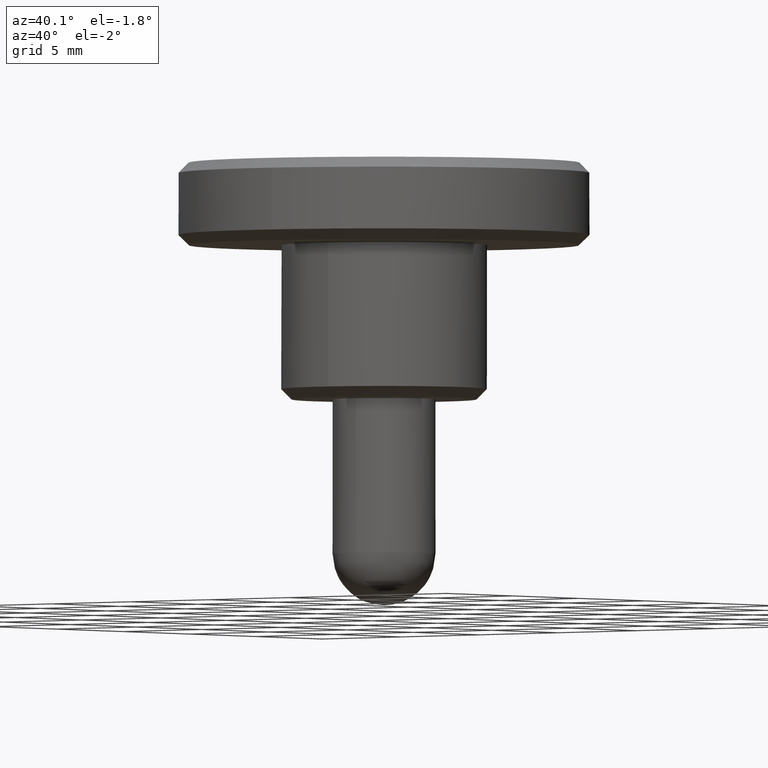
[diagram: clean part render]
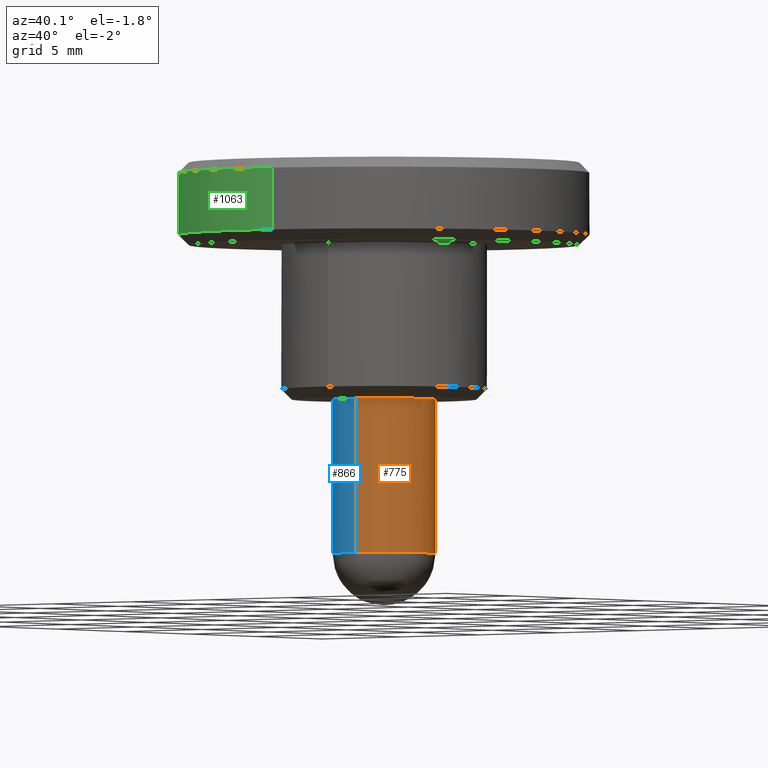
[diagram: same view with three faces highlighted in distinct colors, each labeled with its STEP entity id]
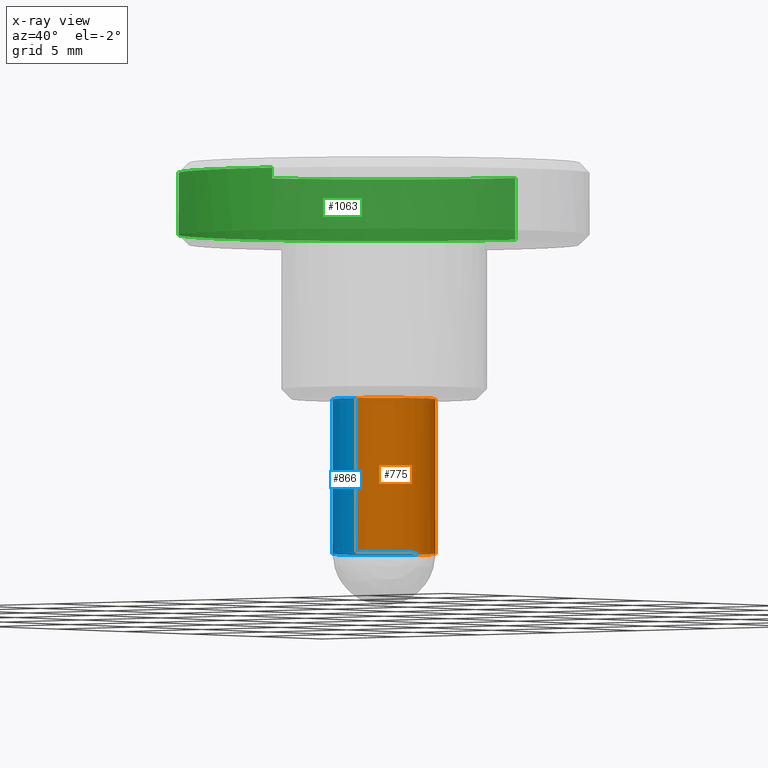
[diagram: x-ray of the same camera — body ghosted, the three highlighted faces saturated]
A machine part, auxiliary view with three faces highlighted in distinct colors.
The next image is the same camera in x-ray (body ghosted, the three faces saturated) — at least one of them is partly hidden behind the body in this view.
Their STEP definitions:

[orange] entity #775 — the highlighted face is a freeform B-spline surface patch.
#677=CARTESIAN_POINT('',(0.310320005199573,-2.480665534563847,-7.687500000000002));
#678=CARTESIAN_POINT('',(2.519332076256112,-2.204328145333053,-7.687500000000004));
#679=CARTESIAN_POINT('',(2.499904807660427,0.021816338745935,-7.687500000000001));
#680=CARTESIAN_POINT('',(2.478088468914493,2.521721146406362,-7.687500000000001));
#681=CARTESIAN_POINT('',(-0.021816338745935,2.499904807660427,-7.687500000000001));
#682=CARTESIAN_POINT('',(0.310320005199573,-2.480665534563847,0.192187500000000));
#683=CARTESIAN_POINT('',(2.519332076256112,-2.204328145333053,0.192187500000000));
#684=CARTESIAN_POINT('',(2.499904807660427,0.021816338745935,0.192187500000000));
#685=CARTESIAN_POINT('',(2.478088468914493,2.521721146406362,0.192187500000000));
#686=CARTESIAN_POINT('',(-0.021816338745935,2.499904807660427,0.192187500000000));
#694=(BOUNDED_SURFACE()B_SPLINE_SURFACE(2,1,((#677,#682),(#678,#683),(#679,#684),(#680,#685),(#681,#686)),.UNSPECIFIED.,.F.,.F.,.U.)B_SPLINE_SURFACE_WITH_KNOTS((3,2,3),(2,2),(0.0,3.810764773832473,7.952900397563423),(0.0,7.879687500000001),.UNSPECIFIED.)GEOMETRIC_REPRESENTATION_ITEM()RATIONAL_B_SPLINE_SURFACE(((0.956886118190660,0.956886118190660),(0.730538238691624,0.730538238691624),(1.0,1.0),(0.707106781186548,0.707106781186548),(1.0,1.0)))REPRESENTATION_ITEM('')SURFACE());
#695=CARTESIAN_POINT('',(0.310320005214538,-2.480665534561975,-7.500000000000000));
#696=VERTEX_POINT('',#695);
#697=CARTESIAN_POINT('',(2.500000000000000,0.0,-7.500000000000000));
#698=VERTEX_POINT('',#697);
#699=CARTESIAN_POINT('',(0.310320005214538,-2.480665534561975,-7.500000000000000));
#700=CARTESIAN_POINT('',(2.500000000000001,-2.206746500348739,-7.500000000000000));
#701=CARTESIAN_POINT('',(2.500000000000000,0.0,-7.500000000000000));
#709=(BOUNDED_CURVE()B_SPLINE_CURVE(2,(#699,#700,#701),.UNSPECIFIED.,.F.,.U.)B_SPLINE_CURVE_WITH_KNOTS((3,3),(0.771473928972736,1.0),.UNSPECIFIED.)CURVE()GEOMETRIC_REPRESENTATION_ITEM()RATIONAL_B_SPLINE_CURVE((0.954005430270770,0.732265053896132,1.0))REPRESENTATION_ITEM(''));
#710=EDGE_CURVE('',#696,#698,#709,.T.);
#711=ORIENTED_EDGE('',*,*,#710,.T.);
#712=CARTESIAN_POINT('',(-0.021811797363553,2.499904847284221,-7.500000000000020));
#713=VERTEX_POINT('',#712);
#714=CARTESIAN_POINT('',(2.500000000000000,0.0,-7.500000000000000));
#715=CARTESIAN_POINT('',(2.500000000000000,2.500000000000000,-7.500000000000000));
#716=CARTESIAN_POINT('',(0.0,2.500000000000000,-7.500000000000000));
#717=CARTESIAN_POINT('',(-0.010906106230911,2.500000000000000,-7.500000000000000));
#718=CARTESIAN_POINT('',(-0.021811797363553,2.499904847284221,-7.500000000000020));
#726=(BOUNDED_CURVE()B_SPLINE_CURVE(2,(#714,#715,#716,#717,#718),.UNSPECIFIED.,.F.,.U.)B_SPLINE_CURVE_WITH_KNOTS((3,2,3),(0.0,0.250000000000000,0.251539574350004),.UNSPECIFIED.)CURVE()GEOMETRIC_REPRESENTATION_ITEM()RATIONAL_B_SPLINE_CURVE((1.0,0.707106781186548,1.0,0.998196276452099,0.996414768636269))REPRESENTATION_ITEM(''));
#727=EDGE_CURVE('',#698,#713,#726,.T.);
#728=ORIENTED_EDGE('',*,*,#727,.T.);
#729=CARTESIAN_POINT('',(-0.021812366237410,2.499904842321671,8.743006E-016));
#730=VERTEX_POINT('',#729);
#731=CARTESIAN_POINT('',(-0.021811797363553,2.499904847284221,-7.500000000000020));
#732=CARTESIAN_POINT('',(-0.021812366237410,2.499904842321671,8.743006E-016));
#733=QUASI_UNIFORM_CURVE('',1,(#731,#732),.UNSPECIFIED.,.F.,.U.);
#734=EDGE_CURVE('',#713,#730,#733,.T.);
#735=ORIENTED_EDGE('',*,*,#734,.T.);
#736=CARTESIAN_POINT('',(2.500000000000000,0.0,0.0));
#737=VERTEX_POINT('',#736);
#738=CARTESIAN_POINT('',(-0.021812366237410,2.499904842321671,8.743006E-016));
#739=CARTESIAN_POINT('',(-0.010906390684075,2.500000000000000,0.0));
#740=CARTESIAN_POINT('',(0.0,2.500000000000000,0.0));
#741=CARTESIAN_POINT('',(2.500000000000000,2.500000000000000,0.0));
#742=CARTESIAN_POINT('',(2.500000000000000,0.0,0.0));
#750=(BOUNDED_CURVE()B_SPLINE_CURVE(2,(#738,#739,#740,#741,#742),.UNSPECIFIED.,.F.,.U.)B_SPLINE_CURVE_WITH_KNOTS((3,2,3),(0.248460385567234,0.250000000000000,0.500000000000000),.UNSPECIFIED.)CURVE()GEOMETRIC_REPRESENTATION_ITEM()RATIONAL_B_SPLINE_CURVE((0.996414675873302,0.998196229492223,1.0,0.707106781186548,1.0))REPRESENTATION_ITEM(''));
#751=EDGE_CURVE('',#730,#737,#750,.T.);
#752=ORIENTED_EDGE('',*,*,#751,.T.);
#753=CARTESIAN_POINT('',(0.310320005215607,-2.480665534561841,-1.450307E-017));
#754=VERTEX_POINT('',#753);
#755=CARTESIAN_POINT('',(2.500000000000000,0.0,0.0));
#756=CARTESIAN_POINT('',(2.499999999999999,-2.206746500346836,0.0));
#757=CARTESIAN_POINT('',(0.310320005215607,-2.480665534561841,-1.450307E-017));
#765=(BOUNDED_CURVE()B_SPLINE_CURVE(2,(#755,#756,#757),.UNSPECIFIED.,.F.,.U.)B_SPLINE_CURVE_WITH_KNOTS((3,3),(0.500000000000000,0.728526071027120),.UNSPECIFIED.)CURVE()GEOMETRIC_REPRESENTATION_ITEM()RATIONAL_B_SPLINE_CURVE((1.0,0.732265053896301,0.954005430270490))REPRESENTATION_ITEM(''));
#766=EDGE_CURVE('',#737,#754,#765,.T.);
#767=ORIENTED_EDGE('',*,*,#766,.T.);
#768=CARTESIAN_POINT('',(0.310320005214538,-2.480665534561975,-7.500000000000000));
#769=CARTESIAN_POINT('',(0.310320005215607,-2.480665534561841,-1.450307E-017));
#770=QUASI_UNIFORM_CURVE('',1,(#768,#769),.UNSPECIFIED.,.F.,.U.);
#771=EDGE_CURVE('',#696,#754,#770,.T.);
#772=ORIENTED_EDGE('',*,*,#771,.F.);
#773=EDGE_LOOP('',(#711,#728,#735,#752,#767,#772));
#774=FACE_OUTER_BOUND('',#773,.T.);
#775=ADVANCED_FACE('',(#774),#694,.T.);

[blue] entity #866 — the highlighted face is a freeform B-spline surface patch.
#695=CARTESIAN_POINT('',(0.310320005214538,-2.480665534561975,-7.500000000000000));
#696=VERTEX_POINT('',#695);
#712=CARTESIAN_POINT('',(-0.021811797363553,2.499904847284221,-7.500000000000020));
#713=VERTEX_POINT('',#712);
#729=CARTESIAN_POINT('',(-0.021812366237410,2.499904842321671,8.743006E-016));
#730=VERTEX_POINT('',#729);
#731=CARTESIAN_POINT('',(-0.021811797363553,2.499904847284221,-7.500000000000020));
#732=CARTESIAN_POINT('',(-0.021812366237410,2.499904842321671,8.743006E-016));
#733=QUASI_UNIFORM_CURVE('',1,(#731,#732),.UNSPECIFIED.,.F.,.U.);
#734=EDGE_CURVE('',#713,#730,#733,.T.);
#753=CARTESIAN_POINT('',(0.310320005215607,-2.480665534561841,-1.450307E-017));
#754=VERTEX_POINT('',#753);
#768=CARTESIAN_POINT('',(0.310320005214538,-2.480665534561975,-7.500000000000000));
#769=CARTESIAN_POINT('',(0.310320005215607,-2.480665534561841,-1.450307E-017));
#770=QUASI_UNIFORM_CURVE('',1,(#768,#769),.UNSPECIFIED.,.F.,.U.);
#771=EDGE_CURVE('',#696,#754,#770,.T.);
#776=CARTESIAN_POINT('',(0.014733680180053,2.500223774843344,-7.687500000000001));
#777=CARTESIAN_POINT('',(-0.003485824154691,2.500064775637800,-7.687499999999996));
#778=CARTESIAN_POINT('',(-2.521721146406362,2.478088468914493,-7.687500000000001));
#779=CARTESIAN_POINT('',(-2.499904807660427,-0.021816338745935,-7.687500000000001));
#780=CARTESIAN_POINT('',(-2.478088468914493,-2.521721146406362,-7.687500000000001));
#781=CARTESIAN_POINT('',(0.021816338745935,-2.499904807660427,-7.687500000000001));
#782=CARTESIAN_POINT('',(0.166625397395434,-2.498641078150688,-7.687500000000003));
#783=CARTESIAN_POINT('',(0.329435670556374,-2.478274251543114,-7.687500000000002));
#784=CARTESIAN_POINT('',(0.348654116289641,-2.475870111163536,-7.687500000000002));
#785=CARTESIAN_POINT('',(0.014733680180053,2.500223774843344,0.192187500000000));
#786=CARTESIAN_POINT('',(-0.003485824154691,2.500064775637800,0.192187500000000));
#787=CARTESIAN_POINT('',(-2.521721146406362,2.478088468914493,0.192187500000000));
#788=CARTESIAN_POINT('',(-2.499904807660427,-0.021816338745935,0.192187500000000));
#789=CARTESIAN_POINT('',(-2.478088468914493,-2.521721146406362,0.192187500000000));
#790=CARTESIAN_POINT('',(0.021816338745935,-2.499904807660427,0.192187500000000));
#791=CARTESIAN_POINT('',(0.166625397395434,-2.498641078150688,0.192187500000000));
#792=CARTESIAN_POINT('',(0.329435670556374,-2.478274251543114,0.192187500000000));
#793=CARTESIAN_POINT('',(0.348654116289641,-2.475870111163536,0.192187500000000));
#801=(BOUNDED_SURFACE()B_SPLINE_SURFACE(2,1,((#776,#785),(#777,#786),(#778,#787),(#779,#788),(#780,#789),(#781,#790),(#782,#791),(#783,#792),(#784,#793)),.UNSPECIFIED.,.F.,.F.,.U.)B_SPLINE_SURFACE_WITH_KNOTS((3,1,2,2,1,3),(2,2),(0.0,0.043083556890763,4.185219180621712,8.327354804352661,8.658725654251137,8.701803890397091),(0.0,7.879687500000002),.UNSPECIFIED.)GEOMETRIC_REPRESENTATION_ITEM()RATIONAL_B_SPLINE_SURFACE(((1.006092935047019,1.006092935047019),(1.003046467523510,1.003046467523510),(0.707106781186548,0.707106781186548),(1.0,1.0),(0.707106781186548,0.707106781186548),(1.0,1.0),(0.976568542494924,0.976568542494924),(0.954327401507030,0.954327401507030),(0.951768684823399,0.951768684823399)))REPRESENTATION_ITEM('')SURFACE());
#802=CARTESIAN_POINT('',(-2.500000000000000,0.0,-7.500000000000000));
#803=VERTEX_POINT('',#802);
#804=CARTESIAN_POINT('',(-2.500000000000000,0.0,-7.500000000000000));
#805=CARTESIAN_POINT('',(-2.500000000000000,-2.500000000000000,-7.500000000000000));
#806=CARTESIAN_POINT('',(0.0,-2.500000000000000,-7.500000000000000));
#807=CARTESIAN_POINT('',(0.155762318848879,-2.500000000000000,-7.500000000000001));
#808=CARTESIAN_POINT('',(0.310320005214538,-2.480665534561974,-7.500000000000000));
#816=(BOUNDED_CURVE()B_SPLINE_CURVE(2,(#804,#805,#806,#807,#808),.UNSPECIFIED.,.F.,.U.)B_SPLINE_CURVE_WITH_KNOTS((3,2,3),(0.500000000000000,0.750000000000000,0.771473928972736),.UNSPECIFIED.)CURVE()GEOMETRIC_REPRESENTATION_ITEM()RATIONAL_B_SPLINE_CURVE((1.0,0.707106781186548,1.0,0.974841727290415,0.954005430270769))REPRESENTATION_ITEM(''));
#817=EDGE_CURVE('',#803,#696,#816,.T.);
#818=ORIENTED_EDGE('',*,*,#817,.T.);
#819=ORIENTED_EDGE('',*,*,#771,.T.);
#820=CARTESIAN_POINT('',(-2.500000000000000,0.0,0.0));
#821=VERTEX_POINT('',#820);
#822=CARTESIAN_POINT('',(0.310320005215607,-2.480665534561842,-1.450307E-017));
#823=CARTESIAN_POINT('',(0.155762318849957,-2.500000000000000,0.0));
#824=CARTESIAN_POINT('',(0.0,-2.500000000000000,0.0));
#825=CARTESIAN_POINT('',(-2.500000000000000,-2.500000000000000,0.0));
#826=CARTESIAN_POINT('',(-2.500000000000000,0.0,0.0));
#834=(BOUNDED_CURVE()B_SPLINE_CURVE(2,(#822,#823,#824,#825,#826),.UNSPECIFIED.,.F.,.U.)B_SPLINE_CURVE_WITH_KNOTS((3,2,3),(0.728526071027119,0.750000000000000,1.0),.UNSPECIFIED.)CURVE()GEOMETRIC_REPRESENTATION_ITEM()RATIONAL_B_SPLINE_CURVE((0.954005430270488,0.974841727290245,1.0,0.707106781186548,1.0))REPRESENTATION_ITEM(''));
#835=EDGE_CURVE('',#754,#821,#834,.T.);
#836=ORIENTED_EDGE('',*,*,#835,.T.);
#837=CARTESIAN_POINT('',(-2.500000000000000,0.0,0.0));
#838=CARTESIAN_POINT('',(-2.500000000000000,2.478281964782639,0.0));
#839=CARTESIAN_POINT('',(-0.021812366237410,2.499904842321671,8.743006E-016));
#847=(BOUNDED_CURVE()B_SPLINE_CURVE(2,(#837,#838,#839),.UNSPECIFIED.,.F.,.U.)B_SPLINE_CURVE_WITH_KNOTS((3,3),(0.0,0.248460385567234),.UNSPECIFIED.)CURVE()GEOMETRIC_REPRESENTATION_ITEM()RATIONAL_B_SPLINE_CURVE((1.0,0.708910551694325,0.996414675873302))REPRESENTATION_ITEM(''));
#848=EDGE_CURVE('',#821,#730,#847,.T.);
#849=ORIENTED_EDGE('',*,*,#848,.T.);
#850=ORIENTED_EDGE('',*,*,#734,.F.);
#851=CARTESIAN_POINT('',(-0.021811797363553,2.499904847284221,-7.500000000000020));
#852=CARTESIAN_POINT('',(-2.499999999999999,2.478282528757553,-7.499999999999999));
#853=CARTESIAN_POINT('',(-2.500000000000000,0.0,-7.500000000000000));
#861=(BOUNDED_CURVE()B_SPLINE_CURVE(2,(#851,#852,#853),.UNSPECIFIED.,.F.,.U.)B_SPLINE_CURVE_WITH_KNOTS((3,3),(0.251539574350004,0.500000000000000),.UNSPECIFIED.)CURVE()GEOMETRIC_REPRESENTATION_ITEM()RATIONAL_B_SPLINE_CURVE((0.996414768636269,0.708910504734449,1.0))REPRESENTATION_ITEM(''));
#862=EDGE_CURVE('',#713,#803,#861,.T.);
#863=ORIENTED_EDGE('',*,*,#862,.T.);
#864=EDGE_LOOP('',(#818,#819,#836,#849,#850,#863));
#865=FACE_OUTER_BOUND('',#864,.T.);
#866=ADVANCED_FACE('',(#865),#801,.T.);

[green] entity #1063 — the highlighted face is a freeform B-spline surface patch.
#70=CARTESIAN_POINT('',(-9.742181531784778,-2.256080451086446,10.999999999998970));
#71=VERTEX_POINT('',#70);
#72=CARTESIAN_POINT('',(-10.0,0.0,11.000000000000121));
#73=VERTEX_POINT('',#72);
#74=CARTESIAN_POINT('',(-9.742181531784778,-2.256080451086447,10.999999999998973));
#75=CARTESIAN_POINT('',(-10.000000000000002,-1.142771606807493,11.000000000000124));
#76=CARTESIAN_POINT('',(-10.0,0.0,11.000000000000121));
#84=(BOUNDED_CURVE()B_SPLINE_CURVE(2,(#74,#75,#76),.UNSPECIFIED.,.F.,.U.)B_SPLINE_CURVE_WITH_KNOTS((3,3),(0.961422971784283,1.0),.UNSPECIFIED.)CURVE()GEOMETRIC_REPRESENTATION_ITEM()RATIONAL_B_SPLINE_CURVE((0.923556557442257,0.954804200134566,1.0))REPRESENTATION_ITEM(''));
#85=EDGE_CURVE('',#71,#73,#84,.T.);
#143=CARTESIAN_POINT('',(-0.087265355013846,-9.999619230645545,10.999999999996030));
#144=VERTEX_POINT('',#143);
#150=CARTESIAN_POINT('',(1.241278290749142,-9.922662354676380,11.000000000000099));
#151=VERTEX_POINT('',#150);
#152=CARTESIAN_POINT('',(1.241278290749142,-9.922662354676380,11.000000000000099));
#153=CARTESIAN_POINT('',(0.623048400184220,-10.0,11.000000000000117));
#154=CARTESIAN_POINT('',(0.0,-10.0,11.000000000000121));
#155=CARTESIAN_POINT('',(-0.043633508237107,-10.0,11.000000000000119));
#156=CARTESIAN_POINT('',(-0.087265355013846,-9.999619230645545,10.999999999996028));
#164=(BOUNDED_CURVE()B_SPLINE_CURVE(2,(#152,#153,#154,#155,#156),.UNSPECIFIED.,.F.,.U.)B_SPLINE_CURVE_WITH_KNOTS((3,2,3),(0.728526100433277,0.750000000000000,0.751539894336047),.UNSPECIFIED.)CURVE()GEOMETRIC_REPRESENTATION_ITEM()RATIONAL_B_SPLINE_CURVE((0.954005487336481,0.974841761741703,1.0,0.998195901565130,0.996414028097953))REPRESENTATION_ITEM(''));
#165=EDGE_CURVE('',#151,#144,#164,.T.);
#182=CARTESIAN_POINT('',(-0.087258805515290,9.999619287793767,11.000000000000149));
#183=VERTEX_POINT('',#182);
#199=CARTESIAN_POINT('',(-10.0,0.0,11.000000000000121));
#200=CARTESIAN_POINT('',(-9.999999999999998,9.913118599007813,11.000000000000121));
#201=CARTESIAN_POINT('',(-0.087258805515290,9.999619287793767,11.000000000000151));
#209=(BOUNDED_CURVE()B_SPLINE_CURVE(2,(#199,#200,#201),.UNSPECIFIED.,.F.,.U.)B_SPLINE_CURVE_WITH_KNOTS((3,3),(0.0,0.248460221033578),.UNSPECIFIED.)CURVE()GEOMETRIC_REPRESENTATION_ITEM()RATIONAL_B_SPLINE_CURVE((1.0,0.708910744457494,0.996414295095714))REPRESENTATION_ITEM(''));
#210=EDGE_CURVE('',#73,#183,#209,.T.);
#229=CARTESIAN_POINT('',(-0.087265355013846,-9.999619230645545,10.999999999996021));
#230=CARTESIAN_POINT('',(-7.964864184835776,-9.930872467097576,11.000000000000117));
#231=CARTESIAN_POINT('',(-9.742181531784778,-2.256080451086446,10.999999999998973));
#239=(BOUNDED_CURVE()B_SPLINE_CURVE(2,(#229,#230,#231),.UNSPECIFIED.,.F.,.U.)B_SPLINE_CURVE_WITH_KNOTS((3,3),(0.751539894336047,0.961422971784283),.UNSPECIFIED.)CURVE()GEOMETRIC_REPRESENTATION_ITEM()RATIONAL_B_SPLINE_CURVE((0.996414028097954,0.753549905437045,0.923556557442256))REPRESENTATION_ITEM(''));
#240=EDGE_CURVE('',#144,#71,#239,.T.);
#337=CARTESIAN_POINT('',(0.087265354984036,-9.999619230641766,8.000000000000146));
#338=VERTEX_POINT('',#337);
#344=CARTESIAN_POINT('',(-10.0,0.0,8.000000000000119));
#345=VERTEX_POINT('',#344);
#346=CARTESIAN_POINT('',(-10.0,0.0,8.000000000000119));
#347=CARTESIAN_POINT('',(-10.000000000000002,-10.000000000000002,8.000000000000119));
#348=CARTESIAN_POINT('',(0.0,-10.0,8.000000000000119));
#349=CARTESIAN_POINT('',(0.043633508207315,-9.999999999999998,8.000000000000119));
#350=CARTESIAN_POINT('',(0.087265354984036,-9.999619230641766,8.000000000000146));
#358=(BOUNDED_CURVE()B_SPLINE_CURVE(2,(#346,#347,#348,#349,#350),.UNSPECIFIED.,.F.,.U.)B_SPLINE_CURVE_WITH_KNOTS((3,2,3),(0.0,0.250000000000000,0.251539894334998),.UNSPECIFIED.)CURVE()GEOMETRIC_REPRESENTATION_ITEM()RATIONAL_B_SPLINE_CURVE((1.0,0.707106781186548,1.0,0.998195901566360,0.996414028100381))REPRESENTATION_ITEM(''));
#359=EDGE_CURVE('',#345,#338,#358,.T.);
#361=CARTESIAN_POINT('',(-0.087258337325771,9.999619291878959,8.000000000000119));
#362=VERTEX_POINT('',#361);
#363=CARTESIAN_POINT('',(-0.087258337325771,9.999619291878959,8.000000000000119));
#364=CARTESIAN_POINT('',(-10.0,9.913119063164983,8.000000000000119));
#365=CARTESIAN_POINT('',(-10.0,0.0,8.000000000000119));
#373=(BOUNDED_CURVE()B_SPLINE_CURVE(2,(#363,#364,#365),.UNSPECIFIED.,.F.,.U.)B_SPLINE_CURVE_WITH_KNOTS((3,3),(0.751539770719286,1.0),.UNSPECIFIED.)CURVE()GEOMETRIC_REPRESENTATION_ITEM()RATIONAL_B_SPLINE_CURVE((0.996414314181917,0.708910734795373,1.0))REPRESENTATION_ITEM(''));
#374=EDGE_CURVE('',#362,#345,#373,.T.);
#444=CARTESIAN_POINT('',(1.241273483490002,-9.922662956038625,8.000000000000119));
#445=VERTEX_POINT('',#444);
#459=CARTESIAN_POINT('',(0.087265354984036,-9.999619230641766,8.000000000000146));
#460=CARTESIAN_POINT('',(0.666498284524844,-9.994564341445518,8.000000000000119));
#461=CARTESIAN_POINT('',(1.241273483490001,-9.922662956038625,8.000000000000119));
#469=(BOUNDED_CURVE()B_SPLINE_CURVE(2,(#459,#460,#461),.UNSPECIFIED.,.F.,.U.)B_SPLINE_CURVE_WITH_KNOTS((3,3),(0.251539894334998,0.271473817862368),.UNSPECIFIED.)CURVE()GEOMETRIC_REPRESENTATION_ITEM()RATIONAL_B_SPLINE_CURVE((0.996414028100381,0.973347686080027,0.954005645893153))REPRESENTATION_ITEM(''));
#470=EDGE_CURVE('',#338,#445,#469,.T.);
#1013=CARTESIAN_POINT('',(1.241273483490002,-9.922662956038625,8.000000000000119));
#1014=CARTESIAN_POINT('',(1.241278290749142,-9.922662354676380,11.000000000000099));
#1015=QUASI_UNIFORM_CURVE('',1,(#1013,#1014),.UNSPECIFIED.,.F.,.U.);
#1016=EDGE_CURVE('',#445,#151,#1015,.T.);
#1021=CARTESIAN_POINT('',(-0.087258337325771,9.999619291878959,8.000000000000119));
#1022=CARTESIAN_POINT('',(-0.087258805515290,9.999619287793767,11.000000000000149));
#1023=QUASI_UNIFORM_CURVE('',1,(#1021,#1022),.UNSPECIFIED.,.F.,.U.);
#1024=EDGE_CURVE('',#362,#183,#1023,.T.);
#1030=CARTESIAN_POINT('',(-0.087265354983739,9.999619230641709,7.925000000000117));
#1031=CARTESIAN_POINT('',(-10.086884585625448,9.912353875657971,7.925000000000117));
#1032=CARTESIAN_POINT('',(-9.999619230641709,-0.087265354983739,7.925000000000117));
#1033=CARTESIAN_POINT('',(-9.912353875657971,-10.086884585625448,7.925000000000117));
#1034=CARTESIAN_POINT('',(0.087265354983739,-9.999619230641709,7.925000000000117));
#1035=CARTESIAN_POINT('',(0.666501589581736,-9.994564312602755,7.925000000000117));
#1036=CARTESIAN_POINT('',(1.241280020798293,-9.922662138255385,7.925000000000117));
#1037=CARTESIAN_POINT('',(-0.087265354983739,9.999619230641709,11.076875000000120));
#1038=CARTESIAN_POINT('',(-10.086884585625448,9.912353875657971,11.076875000000122));
#1039=CARTESIAN_POINT('',(-9.999619230641709,-0.087265354983739,11.076875000000120));
#1040=CARTESIAN_POINT('',(-9.912353875657971,-10.086884585625448,11.076875000000122));
#1041=CARTESIAN_POINT('',(0.087265354983739,-9.999619230641709,11.076875000000120));
#1042=CARTESIAN_POINT('',(0.666501589581736,-9.994564312602755,11.076875000000122));
#1043=CARTESIAN_POINT('',(1.241280020798293,-9.922662138255385,11.076875000000120));
#1051=(BOUNDED_SURFACE()B_SPLINE_SURFACE(2,1,((#1030,#1037),(#1031,#1038),(#1032,#1039),(#1033,#1040),(#1034,#1041),(#1035,#1042),(#1036,#1043)),.UNSPECIFIED.,.F.,.F.,.U.)B_SPLINE_SURFACE_WITH_KNOTS((3,2,2,3),(2,2),(0.0,16.568542494923800,33.137084989847587,34.462568389441500),(0.0,3.151875000000006),.UNSPECIFIED.)GEOMETRIC_REPRESENTATION_ITEM()RATIONAL_B_SPLINE_SURFACE(((1.0,1.0),(0.707106781186548,0.707106781186548),(1.0,1.0),(0.707106781186548,0.707106781186548),(1.0,1.0),(0.976568542494924,0.976568542494924),(0.956886118190660,0.956886118190660)))REPRESENTATION_ITEM('')SURFACE());
#1052=ORIENTED_EDGE('',*,*,#165,.T.);
#1053=ORIENTED_EDGE('',*,*,#240,.T.);
#1054=ORIENTED_EDGE('',*,*,#85,.T.);
#1055=ORIENTED_EDGE('',*,*,#210,.T.);
#1056=ORIENTED_EDGE('',*,*,#1024,.F.);
#1057=ORIENTED_EDGE('',*,*,#374,.T.);
#1058=ORIENTED_EDGE('',*,*,#359,.T.);
#1059=ORIENTED_EDGE('',*,*,#470,.T.);
#1060=ORIENTED_EDGE('',*,*,#1016,.T.);
#1061=EDGE_LOOP('',(#1052,#1053,#1054,#1055,#1056,#1057,#1058,#1059,#1060));
#1062=FACE_OUTER_BOUND('',#1061,.T.);
#1063=ADVANCED_FACE('',(#1062),#1051,.T.);